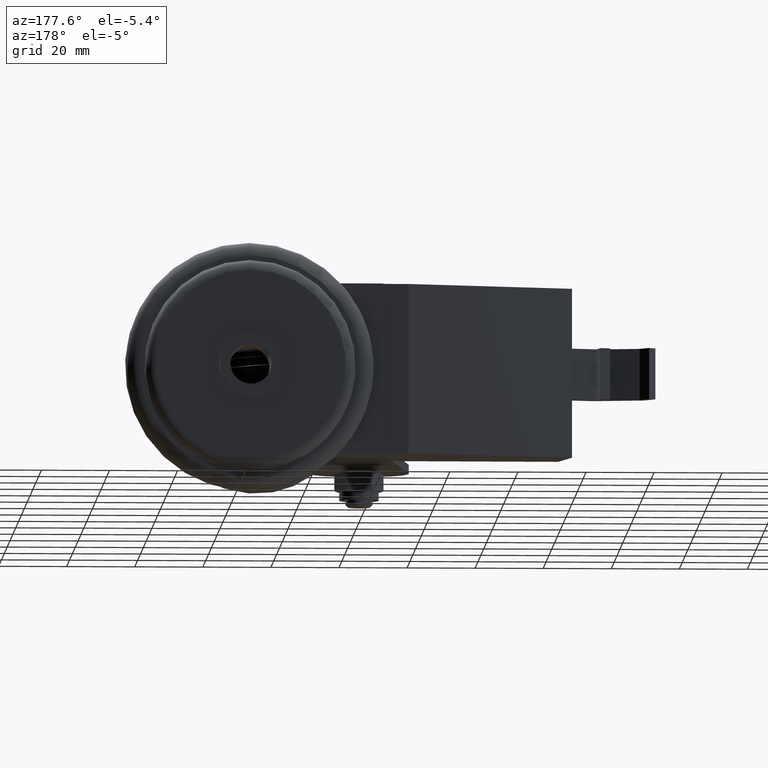
[diagram: clean part render]
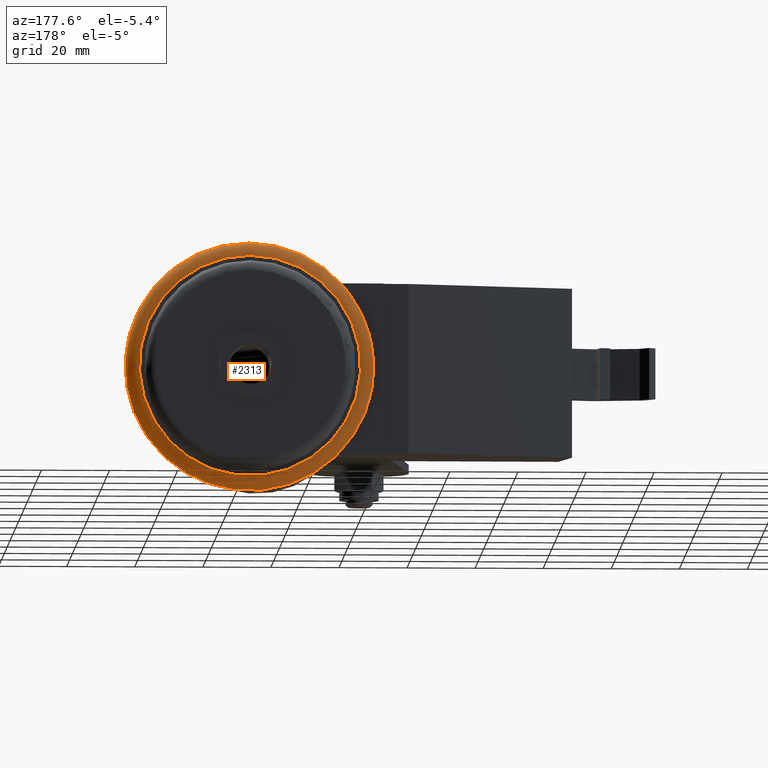
[diagram: same view with one face highlighted and labeled with its STEP entity id]
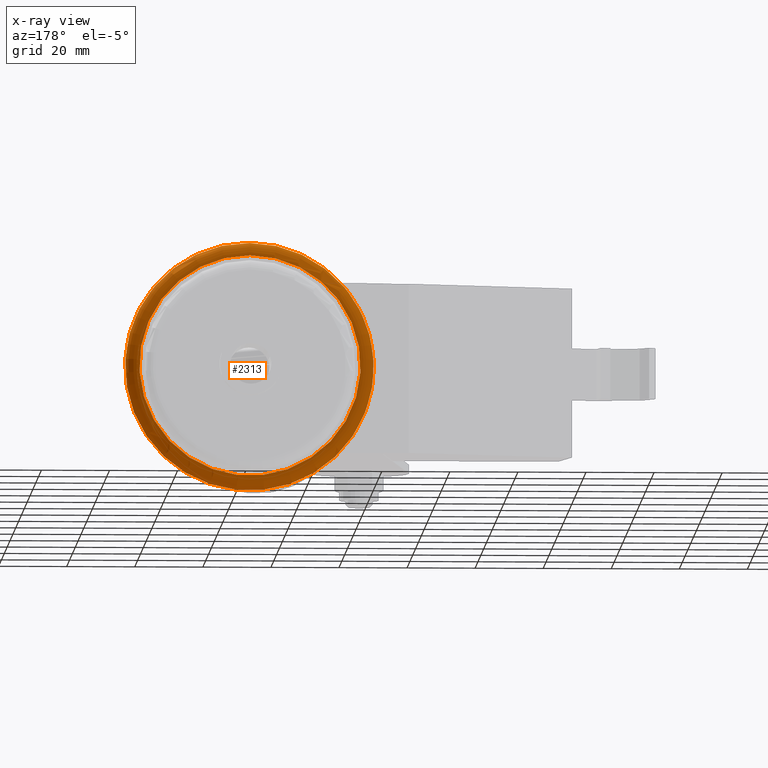
[diagram: x-ray of the same camera — body ghosted, the highlighted face saturated]
A machine part, auxiliary view. The second image highlights one B-rep face of the part: STEP entity #2313.
The next image is the same camera in x-ray: the body ghosted, the highlighted face saturated — about 0% of this face is hidden behind the body in this view.
In plain terms, the highlighted toroidal blend (fillet) surface has major radius 32.5 mm and minor (blend) radius 4 mm.
Its self-contained STEP definition (entity closure, byte-faithful):
#161=TOROIDAL_SURFACE('',#2606,32.5,4.00000000000003);
#332=FACE_OUTER_BOUND('',#491,.T.);
#491=EDGE_LOOP('',(#1850,#1851,#1852,#1853));
#636=CIRCLE('',#2605,32.5);
#637=CIRCLE('',#2607,36.5);
#638=CIRCLE('',#2608,4.00000000000003);
#1130=VERTEX_POINT('',#3841);
#1131=VERTEX_POINT('',#3844);
#1383=EDGE_CURVE('',#1130,#1130,#636,.T.);
#1384=EDGE_CURVE('',#1131,#1131,#637,.T.);
#1385=EDGE_CURVE('',#1131,#1130,#638,.T.);
#1850=ORIENTED_EDGE('',*,*,#1384,.F.);
#1851=ORIENTED_EDGE('',*,*,#1385,.T.);
#1852=ORIENTED_EDGE('',*,*,#1383,.T.);
#1853=ORIENTED_EDGE('',*,*,#1385,.F.);
#2313=ADVANCED_FACE('',(#332),#161,.T.);
#2605=AXIS2_PLACEMENT_3D('',#3842,#3094,#3095);
#2606=AXIS2_PLACEMENT_3D('',#3843,#3096,#3097);
#2607=AXIS2_PLACEMENT_3D('',#3845,#3098,#3099);
#2608=AXIS2_PLACEMENT_3D('',#3846,#3100,#3101);
#3094=DIRECTION('center_axis',(0.,-1.,0.));
#3095=DIRECTION('ref_axis',(0.,0.,-1.));
#3096=DIRECTION('center_axis',(0.,-1.,0.));
#3097=DIRECTION('ref_axis',(0.,0.,-1.));
#3098=DIRECTION('center_axis',(0.,-1.,0.));
#3099=DIRECTION('ref_axis',(0.,0.,-1.));
#3100=DIRECTION('center_axis',(-1.,0.,-1.2166827667125E-16));
#3101=DIRECTION('ref_axis',(-1.2166827667125E-16,0.,1.));
#3841=CARTESIAN_POINT('',(35.,71.2,32.5));
#3842=CARTESIAN_POINT('Origin',(35.,71.2,0.));
#3843=CARTESIAN_POINT('Origin',(35.,67.2,0.));
#3844=CARTESIAN_POINT('',(35.,67.2,36.5));
#3845=CARTESIAN_POINT('Origin',(35.,67.2,0.));
#3846=CARTESIAN_POINT('Origin',(35.,67.2,32.5));